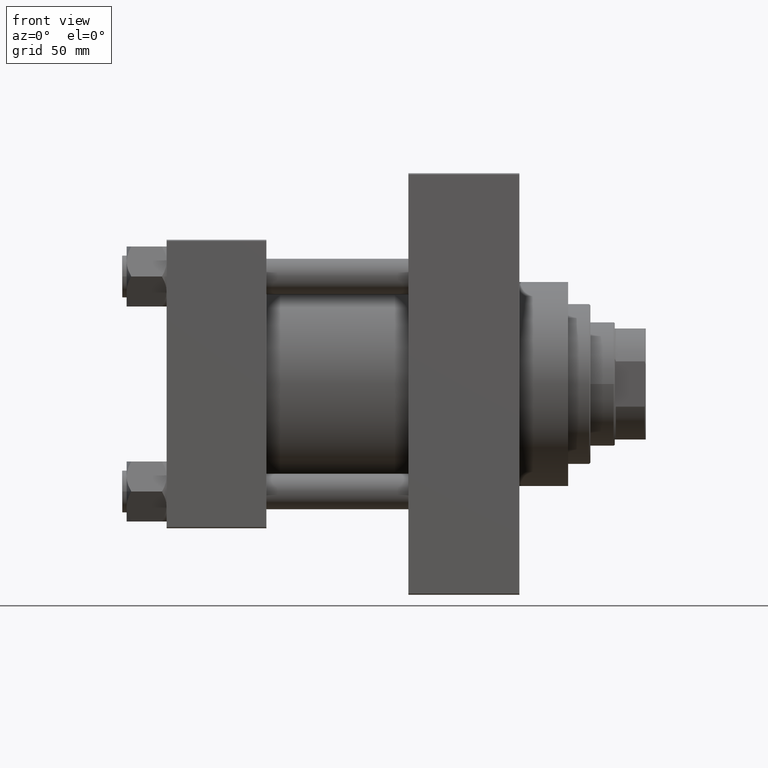
[diagram: clean part render]
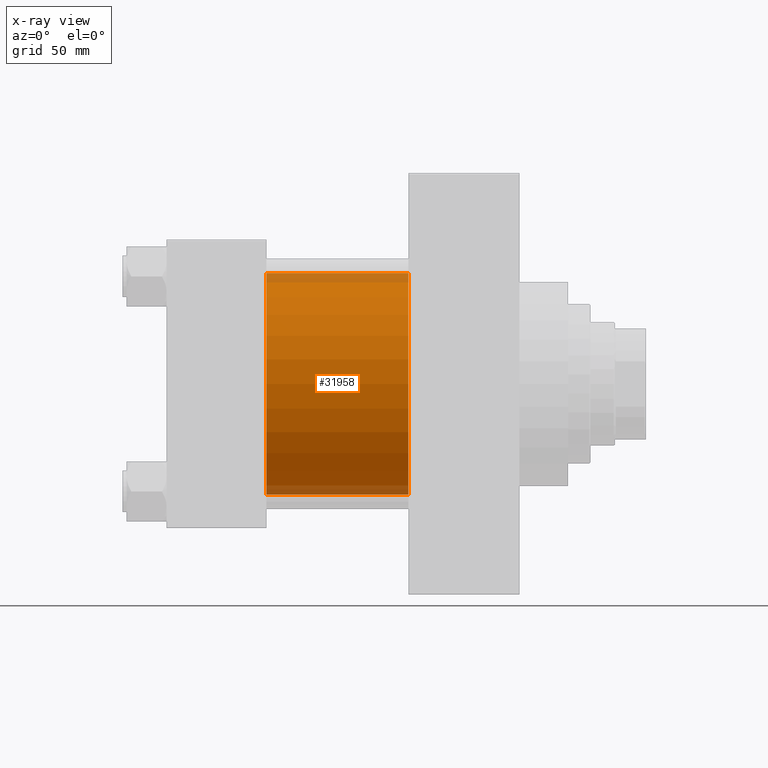
[diagram: x-ray — body ghosted, one internal face saturated and labeled with its STEP entity id]
A machine part, front view, then the same camera in x-ray: the body is ghosted and one INTERNAL B-rep face — a face not visible from any outside direction — is saturated and labeled: STEP entity #31958.
In plain terms, the highlighted cylindrical surface (partial cylindrical patch) has radius 50 mm, axis along (-1, -0, -0).
Its self-contained STEP definition (entity closure, byte-faithful):
#1324 = CARTESIAN_POINT ( 'NONE',  ( 109.0000000000000000, -2.602085213965210642E-15, 50.00000000000000000 ) ) ;
#2923 = VECTOR ( 'NONE', #13578, 1000.000000000000000 ) ;
#4271 = FACE_OUTER_BOUND ( 'NONE', #12862, .T. ) ;
#4517 = DIRECTION ( 'NONE',  ( 0.000000000000000000, 0.000000000000000000, 1.000000000000000000 ) ) ;
#5164 = VERTEX_POINT ( 'NONE', #17044 ) ;
#5247 = CIRCLE ( 'NONE', #39977, 50.00000000000000000 ) ;
#7138 = ORIENTED_EDGE ( 'NONE', *, *, #10955, .T. ) ;
#10899 = EDGE_CURVE ( 'NONE', #13204, #30344, #36528, .T. ) ;
#10955 = EDGE_CURVE ( 'NONE', #5164, #13204, #5247, .T. ) ;
#12862 = EDGE_LOOP ( 'NONE', ( #7138, #14969, #39864, #42570 ) ) ;
#13204 = VERTEX_POINT ( 'NONE', #20695 ) ;
#13578 = DIRECTION ( 'NONE',  ( -1.000000000000000000, -0.000000000000000000, -0.000000000000000000 ) ) ;
#14969 = ORIENTED_EDGE ( 'NONE', *, *, #10899, .T. ) ;
#15581 = DIRECTION ( 'NONE',  ( 1.000000000000000000, 0.000000000000000000, 0.000000000000000000 ) ) ;
#17044 = CARTESIAN_POINT ( 'NONE',  ( 109.0000000000000000, -2.602085213965210642E-15, 50.00000000000000000 ) ) ;
#19992 = EDGE_CURVE ( 'NONE', #45665, #30344, #27040, .T. ) ;
#20110 = EDGE_CURVE ( 'NONE', #5164, #45665, #20167, .T. ) ;
#20167 = LINE ( 'NONE', #1324, #38623 ) ;
#20695 = CARTESIAN_POINT ( 'NONE',  ( 109.0000000000000000, 3.521148781771555838E-15, -50.00000000000000000 ) ) ;
#23872 = CARTESIAN_POINT ( 'NONE',  ( 45.00000000000000000, 3.521148781771555838E-15, -50.00000000000000000 ) ) ;
#26462 = DIRECTION ( 'NONE',  ( 0.000000000000000000, 0.000000000000000000, -1.000000000000000000 ) ) ;
#27040 = CIRCLE ( 'NONE', #35516, 50.00000000000000000 ) ;
#27184 = DIRECTION ( 'NONE',  ( -1.000000000000000000, -0.000000000000000000, -0.000000000000000000 ) ) ;
#28391 = CARTESIAN_POINT ( 'NONE',  ( 45.00000000000000000, -2.602085213965210642E-15, 50.00000000000000000 ) ) ;
#29996 = DIRECTION ( 'NONE',  ( 0.000000000000000000, 0.000000000000000000, -1.000000000000000000 ) ) ;
#30344 = VERTEX_POINT ( 'NONE', #23872 ) ;
#30615 = CARTESIAN_POINT ( 'NONE',  ( 109.0000000000000000, -2.602085213965210642E-15, 0.000000000000000000 ) ) ;
#30853 = CYLINDRICAL_SURFACE ( 'NONE', #31501, 50.00000000000000000 ) ;
#31501 = AXIS2_PLACEMENT_3D ( 'NONE', #30615, #33762, #4517 ) ;
#31958 = ADVANCED_FACE ( 'NONE', ( #4271 ), #30853, .F. ) ;
#33762 = DIRECTION ( 'NONE',  ( -1.000000000000000000, -0.000000000000000000, -0.000000000000000000 ) ) ;
#35516 = AXIS2_PLACEMENT_3D ( 'NONE', #40723, #15581, #26462 ) ;
#36528 = LINE ( 'NONE', #39451, #2923 ) ;
#37721 = DIRECTION ( 'NONE',  ( 1.000000000000000000, 0.000000000000000000, 0.000000000000000000 ) ) ;
#38623 = VECTOR ( 'NONE', #27184, 1000.000000000000000 ) ;
#39451 = CARTESIAN_POINT ( 'NONE',  ( 109.0000000000000000, 3.521148781771555838E-15, -50.00000000000000000 ) ) ;
#39864 = ORIENTED_EDGE ( 'NONE', *, *, #19992, .F. ) ;
#39977 = AXIS2_PLACEMENT_3D ( 'NONE', #44228, #37721, #29996 ) ;
#40723 = CARTESIAN_POINT ( 'NONE',  ( 45.00000000000000000, -2.602085213965210642E-15, 0.000000000000000000 ) ) ;
#42570 = ORIENTED_EDGE ( 'NONE', *, *, #20110, .F. ) ;
#44228 = CARTESIAN_POINT ( 'NONE',  ( 109.0000000000000000, -2.602085213965210642E-15, 0.000000000000000000 ) ) ;
#45665 = VERTEX_POINT ( 'NONE', #28391 ) ;